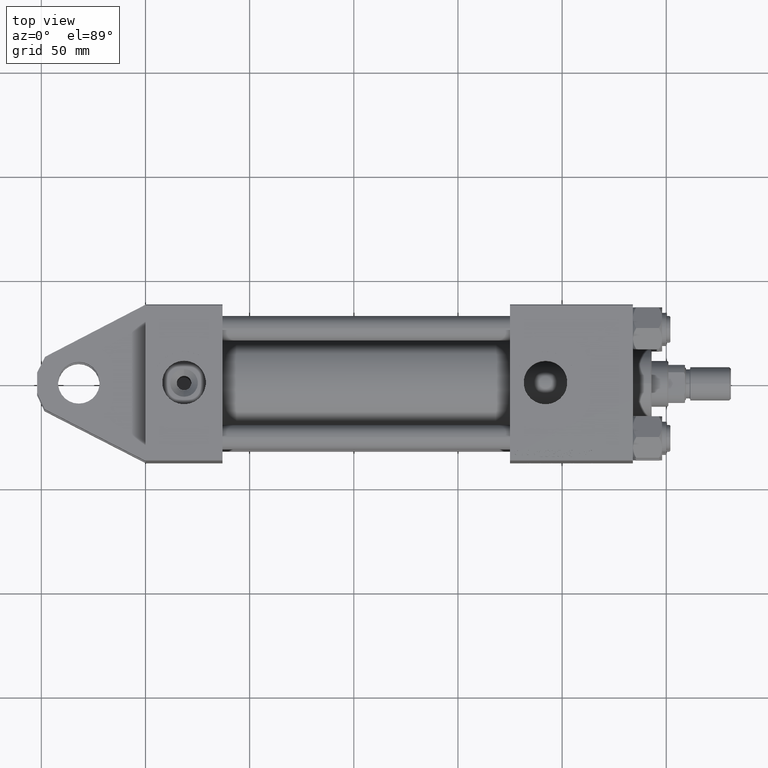
[diagram: clean part render]
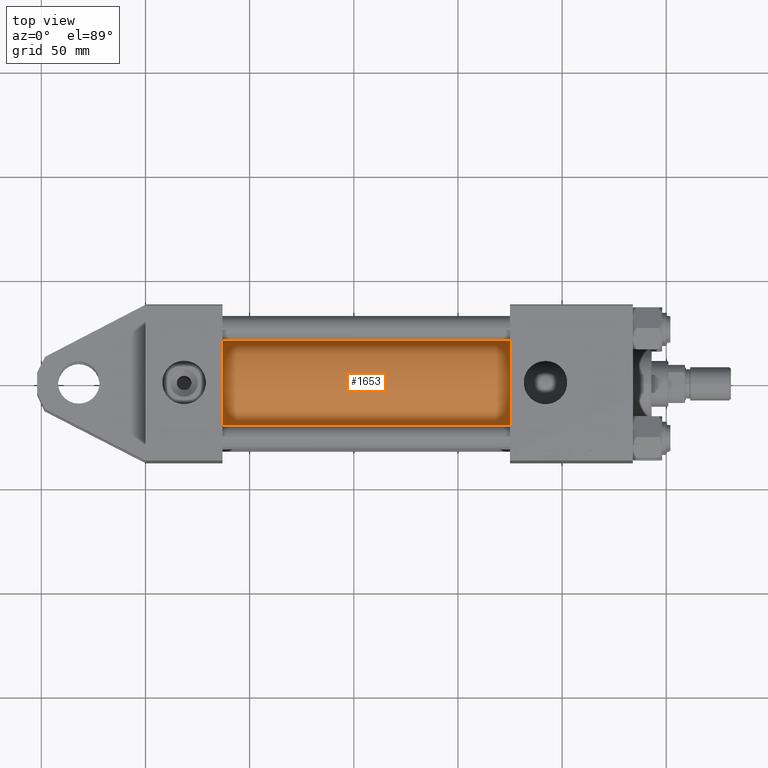
[diagram: same view with one face highlighted and labeled with its STEP entity id]
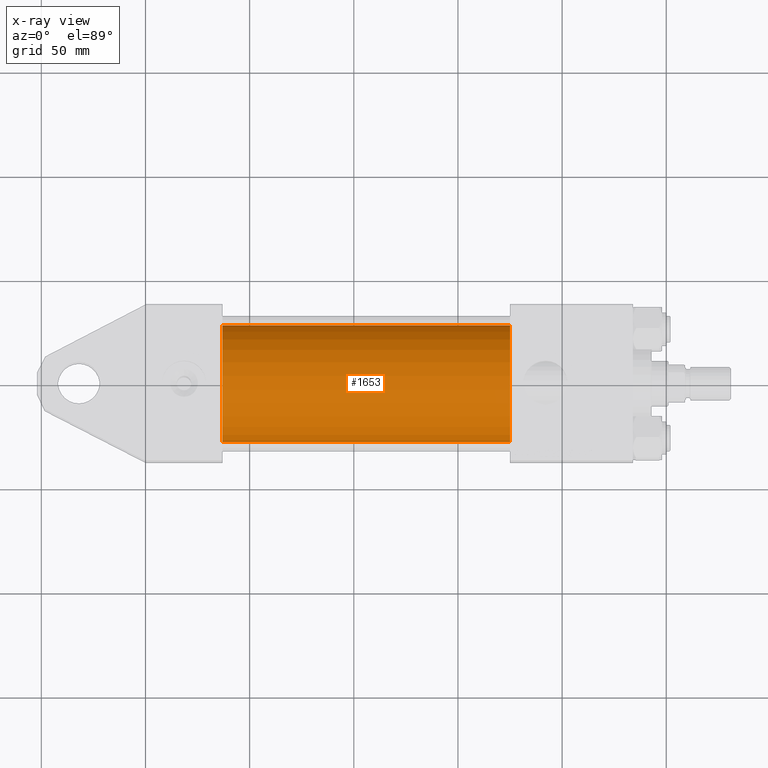
[diagram: x-ray of the same camera — body ghosted, the highlighted face saturated]
A machine part, top view. The second image highlights one B-rep face of the part: STEP entity #1653.
The next image is the same camera in x-ray: the body ghosted, the highlighted face saturated — about 0% of this face is hidden behind the body in this view.
In plain terms, the highlighted cylindrical surface (partial cylindrical patch) has radius 28 mm, axis along (-1, -0, 0).
Its self-contained STEP definition (entity closure, byte-faithful):
#1653 = ADVANCED_FACE ( 'NONE', ( #42886 ), #25745, .T. ) ;
#4860 = ORIENTED_EDGE ( 'NONE', *, *, #51734, .F. ) ;
#5249 = CARTESIAN_POINT ( 'NONE',  ( 37.00000000000000711, -3.469446951953614189E-15, 28.00000000000000000 ) ) ;
#6245 = ORIENTED_EDGE ( 'NONE', *, *, #17382, .T. ) ;
#6375 = DIRECTION ( 'NONE',  ( -1.000000000000000000, -0.000000000000000000, -0.000000000000000000 ) ) ;
#6648 = CARTESIAN_POINT ( 'NONE',  ( 175.0000000000000284, -3.469446951953614189E-15, 28.00000000000000000 ) ) ;
#8486 = VERTEX_POINT ( 'NONE', #39648 ) ;
#10591 = CARTESIAN_POINT ( 'NONE',  ( 175.0000000000000284, -3.469446951953614189E-15, 28.00000000000000000 ) ) ;
#11623 = VERTEX_POINT ( 'NONE', #5249 ) ;
#11950 = VERTEX_POINT ( 'NONE', #48135 ) ;
#12690 = EDGE_LOOP ( 'NONE', ( #4860, #38978, #6245, #32618 ) ) ;
#13053 = AXIS2_PLACEMENT_3D ( 'NONE', #19459, #31847, #39515 ) ;
#14146 = CARTESIAN_POINT ( 'NONE',  ( 175.0000000000000284, -3.469446951953614189E-15, 0.000000000000000000 ) ) ;
#15648 = EDGE_CURVE ( 'NONE', #11623, #11950, #46753, .T. ) ;
#17382 = EDGE_CURVE ( 'NONE', #32965, #11623, #37775, .T. ) ;
#19411 = AXIS2_PLACEMENT_3D ( 'NONE', #14146, #41842, #30749 ) ;
#19459 = CARTESIAN_POINT ( 'NONE',  ( 37.00000000000000711, -3.469446951953614189E-15, 0.000000000000000000 ) ) ;
#20320 = CARTESIAN_POINT ( 'NONE',  ( 175.0000000000000284, -4.043591434102509780E-17, -28.00000000000000000 ) ) ;
#20432 = DIRECTION ( 'NONE',  ( 0.000000000000000000, 0.000000000000000000, -1.000000000000000000 ) ) ;
#24015 = LINE ( 'NONE', #20320, #25328 ) ;
#25328 = VECTOR ( 'NONE', #45100, 1000.000000000000000 ) ;
#25745 = CYLINDRICAL_SURFACE ( 'NONE', #19411, 28.00000000000000000 ) ;
#30749 = DIRECTION ( 'NONE',  ( 0.000000000000000000, 0.000000000000000000, 1.000000000000000000 ) ) ;
#31217 = CIRCLE ( 'NONE', #39638, 28.00000000000000000 ) ;
#31847 = DIRECTION ( 'NONE',  ( 1.000000000000000000, -0.000000000000000000, 0.000000000000000000 ) ) ;
#32618 = ORIENTED_EDGE ( 'NONE', *, *, #15648, .T. ) ;
#32965 = VERTEX_POINT ( 'NONE', #6648 ) ;
#36283 = DIRECTION ( 'NONE',  ( 1.000000000000000000, 0.000000000000000000, 0.000000000000000000 ) ) ;
#37775 = LINE ( 'NONE', #10591, #39281 ) ;
#38978 = ORIENTED_EDGE ( 'NONE', *, *, #39076, .F. ) ;
#39076 = EDGE_CURVE ( 'NONE', #32965, #8486, #31217, .T. ) ;
#39281 = VECTOR ( 'NONE', #6375, 1000.000000000000000 ) ;
#39515 = DIRECTION ( 'NONE',  ( 0.000000000000000000, 0.000000000000000000, 1.000000000000000000 ) ) ;
#39638 = AXIS2_PLACEMENT_3D ( 'NONE', #40235, #36283, #20432 ) ;
#39648 = CARTESIAN_POINT ( 'NONE',  ( 175.0000000000000284, -4.043591434102509780E-17, -28.00000000000000000 ) ) ;
#40235 = CARTESIAN_POINT ( 'NONE',  ( 175.0000000000000284, -3.469446951953614189E-15, 0.000000000000000000 ) ) ;
#41842 = DIRECTION ( 'NONE',  ( -1.000000000000000000, -0.000000000000000000, -0.000000000000000000 ) ) ;
#42886 = FACE_OUTER_BOUND ( 'NONE', #12690, .T. ) ;
#45100 = DIRECTION ( 'NONE',  ( -1.000000000000000000, -0.000000000000000000, -0.000000000000000000 ) ) ;
#46753 = CIRCLE ( 'NONE', #13053, 28.00000000000000000 ) ;
#48135 = CARTESIAN_POINT ( 'NONE',  ( 37.00000000000000711, -4.043591434102509780E-17, -28.00000000000000000 ) ) ;
#51734 = EDGE_CURVE ( 'NONE', #8486, #11950, #24015, .T. ) ;